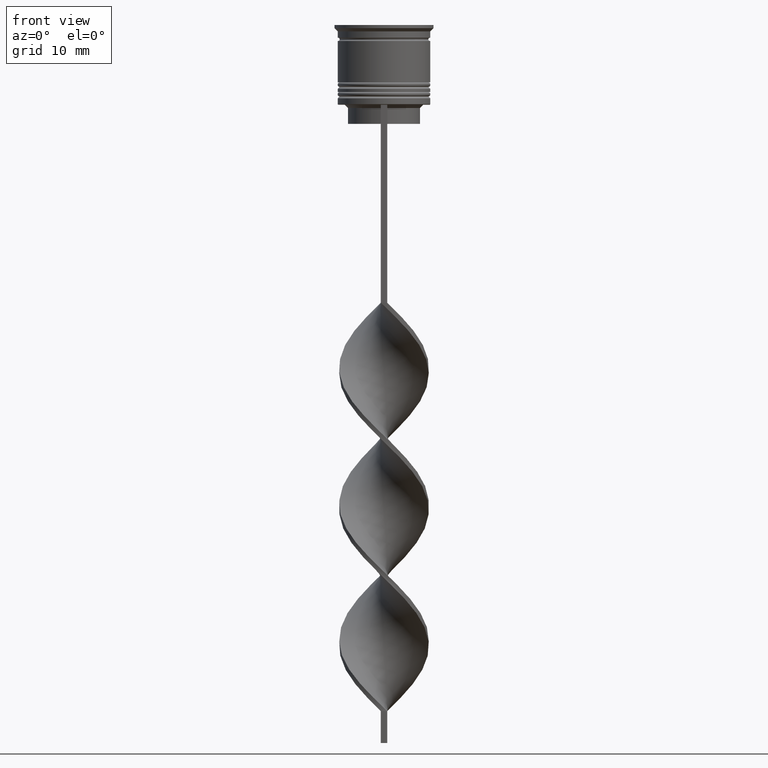
[diagram: clean part render]
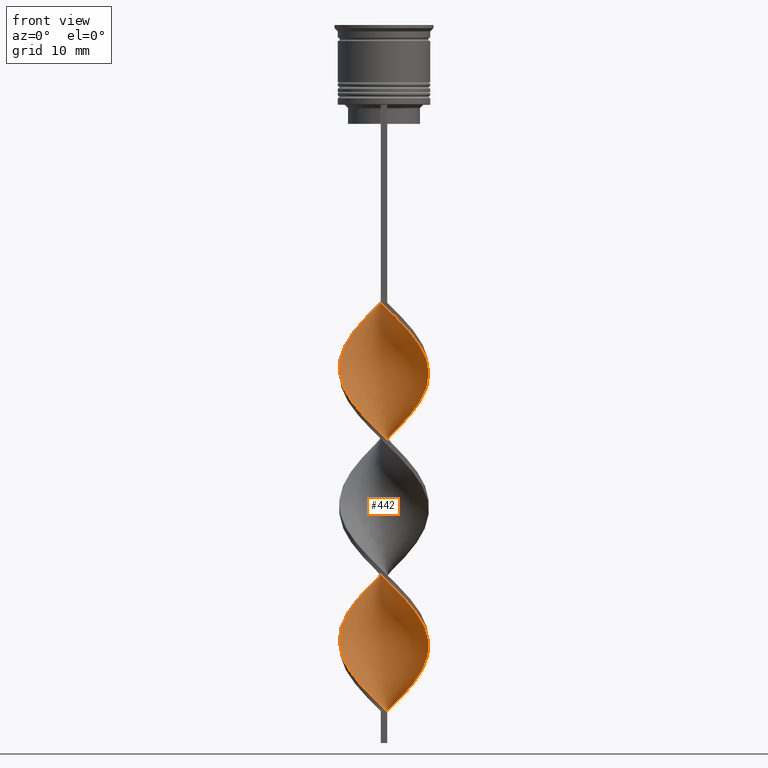
[diagram: same view with one face highlighted and labeled with its STEP entity id]
A machine part, front view. The second image highlights one B-rep face of the part: STEP entity #442.
In plain terms, the highlighted face is a freeform B-spline surface patch.
Its self-contained STEP definition (entity closure, byte-faithful):
#1 = CARTESIAN_POINT ( 'NONE',  ( 2.160680558725928790, -6.676934889838588738, -66.47435897435896379 ) ) ;
#3 = CARTESIAN_POINT ( 'NONE',  ( 5.016113981771116670, 4.908013908077306198, -102.5769230769230660 ) ) ;
#10 = CARTESIAN_POINT ( 'NONE',  ( -6.888693778558713454, 1.340111198836291706, -74.67948717948718240 ) ) ;
#11 = DIRECTION ( 'NONE',  ( 0.000000000000000000, 1.000000000000000000, 0.000000000000000000 ) ) ;
#20 = CARTESIAN_POINT ( 'NONE',  ( 6.888693778558720560, 1.340111198836283490, -76.32051282051281760 ) ) ;
#22 = CARTESIAN_POINT ( 'NONE',  ( -1.349953882555827489, -6.939289008388866975, -85.34615384615385381 ) ) ;
#26 = CARTESIAN_POINT ( 'NONE',  ( -2.160680558725931011, 6.676934889838587850, -45.14102564102563520 ) ) ;
#38 = CARTESIAN_POINT ( 'NONE',  ( 0.3499538825558234922, -7.060710991611127696, -86.98717948717948900 ) ) ;
#50 = CARTESIAN_POINT ( 'NONE',  ( 6.967048179568297250, 1.198476987909309344, -98.47435897435896379 ) ) ;
#55 = CARTESIAN_POINT ( 'NONE',  ( -6.967048179568302579, 1.198476987909311342, -52.52564102564103621 ) ) ;
#74 = CARTESIAN_POINT ( 'NONE',  ( -3.695790217132985944, 5.965830593550586869, -46.78205128205127750 ) ) ;
#79 = CARTESIAN_POINT ( 'NONE',  ( -1.189738741299881442, -6.916250554126144756, -63.19230769230768630 ) ) ;
#89 = CARTESIAN_POINT ( 'NONE',  ( -7.009230458814042386, 0.3474023247382359014, -96.01282051282051100 ) ) ;
#105 = CARTESIAN_POINT ( 'NONE',  ( 6.477784105070043985, -2.830975188000778964, -72.21794871794871540 ) ) ;
#129 = CARTESIAN_POINT ( 'NONE',  ( -2.160680558725931011, 6.676934889838587850, -87.80769230769230660 ) ) ;
#146 = CARTESIAN_POINT ( 'NONE',  ( -3.695790217132985944, 5.965830593550586869, -89.44871794871794179 ) ) ;
#158 = CARTESIAN_POINT ( 'NONE',  ( -6.477784105070046650, 2.830975188000775411, -50.88461538461537970 ) ) ;
#160 = CARTESIAN_POINT ( 'NONE',  ( -2.810334191479773036, 6.430553765594351212, -68.11538461538459899 ) ) ;
#162 = CARTESIAN_POINT ( 'NONE',  ( -5.016113981771117558, 4.908013908077312415, -91.08974358974359120 ) ) ;
#174 = CARTESIAN_POINT ( 'NONE',  ( -6.044919434621174759, 3.564961294171264949, -50.06410256410256210 ) ) ;
#177 = CARTESIAN_POINT ( 'NONE',  ( -7.051412738059777752, 0.5036723384328427588, -75.50000000000000000 ) ) ;
#179 = EDGE_CURVE ( 'NONE', #1910, #485, #1815, .T. ) ;
#185 = CARTESIAN_POINT ( 'NONE',  ( 6.967048179568296362, 1.198476987909309566, -55.80769230769230660 ) ) ;
#195 = CARTESIAN_POINT ( 'NONE',  ( -4.267603233600012480, 5.571136566318105388, -69.75641025641024839 ) ) ;
#211 = CARTESIAN_POINT ( 'NONE',  ( 2.810334191479773480, -6.430553765594351212, -46.78205128205127750 ) ) ;
#217 = CARTESIAN_POINT ( 'NONE',  ( 6.477784105070041321, 2.830975188000771858, -57.44871794871794890 ) ) ;
#249 = CARTESIAN_POINT ( 'NONE',  ( -1.189738741299881442, -6.916250554126144756, -105.8589743589743506 ) ) ;
#255 = CARTESIAN_POINT ( 'NONE',  ( -0.5000000000000000000, -6.999999999999997335, -43.50000000000000000 ) ) ;
#262 = CARTESIAN_POINT ( 'NONE',  ( -6.367811255276639493, -2.949742330640456434, -99.29487179487178139 ) ) ;
#268 = CARTESIAN_POINT ( 'NONE',  ( -6.477784105070042209, -2.830975188000768306, -78.78205128205127039 ) ) ;
#276 = CARTESIAN_POINT ( 'NONE',  ( -5.016113981771117558, 4.908013908077312415, -91.08974358974359120 ) ) ;
#278 = CARTESIAN_POINT ( 'NONE',  ( 1.189738741299877445, -6.916250554126140315, -87.80769230769230660 ) ) ;
#284 = CARTESIAN_POINT ( 'NONE',  ( 6.009647691495616506, -3.722934602041177321, -93.55128205128204399 ) ) ;
#299 = CARTESIAN_POINT ( 'NONE',  ( 0.5000000000000008882, 6.999999999999997335, -107.5000000000000000 ) ) ;
#303 = CARTESIAN_POINT ( 'NONE',  ( -1.349953882555827489, -6.939289008388866975, -85.34615384615383959 ) ) ;
#317 = CARTESIAN_POINT ( 'NONE',  ( -2.971407234896037863, 6.414580771288304284, -45.96153846153845279 ) ) ;
#334 = CARTESIAN_POINT ( 'NONE',  ( -4.944061684284419833, -5.052955718088660397, -59.08974358974359120 ) ) ;
#340 = CARTESIAN_POINT ( 'NONE',  ( -5.476854687890019058, -4.387945160064919747, -100.9358974358974308 ) ) ;
#354 = CARTESIAN_POINT ( 'NONE',  ( 6.725974819057658038, 2.176550059239733326, -77.14102564102563520 ) ) ;
#357 = CARTESIAN_POINT ( 'NONE',  ( 4.420173199369933137, -5.517080415812873007, -68.93589743589743080 ) ) ;
#382 = CARTESIAN_POINT ( 'NONE',  ( -1.349953882555824158, 6.939289008388872304, -86.98717948717948900 ) ) ;
#390 = CARTESIAN_POINT ( 'NONE',  ( 0.4999999999999996669, -2.333333333333336590, -107.5000000000000000 ) ) ;
#406 = CARTESIAN_POINT ( 'NONE',  ( -0.5000000000000000000, 7.000000000000002665, -86.16666666666667140 ) ) ;
#423 = CARTESIAN_POINT ( 'NONE',  ( 5.016113981771116670, -4.908013908077313303, -69.75641025641024839 ) ) ;
#439 = CARTESIAN_POINT ( 'NONE',  ( -6.888693778558713454, 1.340111198836291706, -74.67948717948718240 ) ) ;
#442 = ADVANCED_FACE ( 'NONE', ( #447 ), #2177, .T. ) ;
#447 = FACE_OUTER_BOUND ( 'NONE', #2141, .T. ) ;
#469 = CARTESIAN_POINT ( 'NONE',  ( -1.189738741299875224, 6.916250554126141203, -66.47435897435896379 ) ) ;
#477 = CARTESIAN_POINT ( 'NONE',  ( -7.009230458814042386, 0.3474023247382359014, -53.34615384615383959 ) ) ;
#480 = CARTESIAN_POINT ( 'NONE',  ( 1.189738741299877445, -6.916250554126140315, -45.14102564102563520 ) ) ;
#485 = VERTEX_POINT ( 'NONE', #1571 ) ;
#488 = CARTESIAN_POINT ( 'NONE',  ( 4.420173199369931361, 5.517080415812865901, -60.73076923076922640 ) ) ;
#498 = CARTESIAN_POINT ( 'NONE',  ( 5.016113981771116670, 4.908013908077306198, -59.91025641025640880 ) ) ;
#501 = CARTESIAN_POINT ( 'NONE',  ( 4.267603233600013368, -5.571136566318104499, -48.42307692307691269 ) ) ;
#513 = CARTESIAN_POINT ( 'NONE',  ( -6.725974819057657150, -2.176550059239735546, -98.47435897435896379 ) ) ;
#523 = CARTESIAN_POINT ( 'NONE',  ( 0.3499538825558234922, -7.060710991611127696, -44.32051282051282470 ) ) ;
#533 = CARTESIAN_POINT ( 'NONE',  ( -2.160680558725931011, 6.676934889838587850, -87.80769230769230660 ) ) ;
#539 = CARTESIAN_POINT ( 'NONE',  ( 2.810334191479773480, -6.430553765594351212, -89.44871794871794179 ) ) ;
#548 = CARTESIAN_POINT ( 'NONE',  ( -3.591144782915619338, -6.089317414547553042, -60.73076923076922640 ) ) ;
#552 = CARTESIAN_POINT ( 'NONE',  ( 1.349953882555826601, 6.939289008388866975, -106.6794871794871824 ) ) ;
#557 = CARTESIAN_POINT ( 'NONE',  ( -4.267603233600019585, -5.571136566318106276, -59.91025641025640880 ) ) ;
#567 = CARTESIAN_POINT ( 'NONE',  ( 5.476854687890014617, -4.387945160064918859, -92.73076923076922640 ) ) ;
#573 = CARTESIAN_POINT ( 'NONE',  ( -6.367811255276632387, 2.949742330640457766, -73.03846153846153300 ) ) ;
#584 = CARTESIAN_POINT ( 'NONE',  ( 4.267603233600013368, -5.571136566318104499, -91.08974358974359120 ) ) ;
#589 = CARTESIAN_POINT ( 'NONE',  ( -3.695790217132987721, -5.965830593550580652, -82.88461538461537259 ) ) ;
#602 = CARTESIAN_POINT ( 'NONE',  ( 6.725974819057650933, -2.176550059239735546, -95.19230769230769340 ) ) ;
#607 = CARTESIAN_POINT ( 'NONE',  ( 6.722416142319174170, -2.014726087955045042, -73.03846153846153300 ) ) ;
#619 = CARTESIAN_POINT ( 'NONE',  ( -6.009647691495620947, -3.722934602041179097, -100.1153846153846274 ) ) ;
#624 = CARTESIAN_POINT ( 'NONE',  ( -6.722416142319174170, 2.014726087955044598, -94.37179487179486159 ) ) ;
#640 = CARTESIAN_POINT ( 'NONE',  ( -6.367811255276639493, -2.949742330640456434, -99.29487179487178139 ) ) ;
#655 = CARTESIAN_POINT ( 'NONE',  ( -5.612054764172303756, 4.298947400341753600, -91.91025641025643722 ) ) ;
#669 = CARTESIAN_POINT ( 'NONE',  ( 1.189738741299885438, 6.916250554126144756, -84.52564102564103621 ) ) ;
#685 = CARTESIAN_POINT ( 'NONE',  ( -1.349953882555824158, 6.939289008388872304, -44.32051282051282470 ) ) ;
#689 = CARTESIAN_POINT ( 'NONE',  ( 0.5000000000000008882, 6.999999999999997335, -64.83333333333332860 ) ) ;
#693 = CARTESIAN_POINT ( 'NONE',  ( 5.612054764172302868, -4.298947400341755376, -70.57692307692306599 ) ) ;
#712 = CARTESIAN_POINT ( 'NONE',  ( 6.725974819057650933, -2.176550059239735102, -52.52564102564102910 ) ) ;
#726 = CARTESIAN_POINT ( 'NONE',  ( -6.967048179568298139, -1.198476987909306679, -77.14102564102563520 ) ) ;
#730 = CARTESIAN_POINT ( 'NONE',  ( 2.971407234896038307, 6.414580771288298067, -62.37179487179486870 ) ) ;
#741 = CARTESIAN_POINT ( 'NONE',  ( -2.971407234896037863, 6.414580771288304284, -45.96153846153845990 ) ) ;
#745 = CARTESIAN_POINT ( 'NONE',  ( 2.029523600043931175, -6.771790116641153823, -45.96153846153845990 ) ) ;
#752 = CARTESIAN_POINT ( 'NONE',  ( -6.009647691495614730, 3.722934602041180430, -72.21794871794871540 ) ) ;
#768 = CARTESIAN_POINT ( 'NONE',  ( 6.888693778558713454, -1.340111198836289264, -53.34615384615383959 ) ) ;
#777 = CARTESIAN_POINT ( 'NONE',  ( -6.967048179568302579, 1.198476987909311120, -95.19230769230769340 ) ) ;
#779 = CARTESIAN_POINT ( 'NONE',  ( 4.944061684284414504, -5.052955718088659509, -91.91025641025643722 ) ) ;
#793 = CARTESIAN_POINT ( 'NONE',  ( 3.591144782915620226, 6.089317414547553042, -82.06410256410255499 ) ) ;
#810 = CARTESIAN_POINT ( 'NONE',  ( 5.476854687890019946, 4.387945160064918859, -79.60256410256410220 ) ) ;
#813 = CARTESIAN_POINT ( 'NONE',  ( -6.722416142319169730, -2.014726087955041045, -77.96153846153845279 ) ) ;
#818 = CARTESIAN_POINT ( 'NONE',  ( 7.051412738059776864, -0.5036723384328418707, -96.83333333333332860 ) ) ;
#825 = CARTESIAN_POINT ( 'NONE',  ( -6.477784105070046650, 2.830975188000775411, -93.55128205128204399 ) ) ;
#831 = CARTESIAN_POINT ( 'NONE',  ( 6.888693778558713454, -1.340111198836289264, -96.01282051282051100 ) ) ;
#839 = CARTESIAN_POINT ( 'NONE',  ( 3.591144782915614453, -6.089317414547549490, -90.26923076923077360 ) ) ;
#844 = CARTESIAN_POINT ( 'NONE',  ( 6.722416142319168841, 2.014726087955040157, -99.29487179487178139 ) ) ;
#862 = CARTESIAN_POINT ( 'NONE',  ( 5.476854687890014617, -4.387945160064918859, -92.73076923076922640 ) ) ;
#873 = CARTESIAN_POINT ( 'NONE',  ( -7.051412738059776864, 0.5036723384328427588, -75.49999999999998579 ) ) ;
#880 = CARTESIAN_POINT ( 'NONE',  ( -3.695790217132985944, 5.965830593550586869, -89.44871794871794179 ) ) ;
#896 = CARTESIAN_POINT ( 'NONE',  ( -2.029523600043935616, -6.771790116641158264, -105.0384615384615330 ) ) ;
#919 = CARTESIAN_POINT ( 'NONE',  ( -3.591144782915619338, -6.089317414547552154, -103.3974358974358694 ) ) ;
#935 = CARTESIAN_POINT ( 'NONE',  ( 0.3499538825558280997, 7.060710991611133025, -85.34615384615383959 ) ) ;
#952 = CARTESIAN_POINT ( 'NONE',  ( 4.420173199369933137, -5.517080415812872118, -68.93589743589743080 ) ) ;
#973 = CARTESIAN_POINT ( 'NONE',  ( -5.476854687890014617, 4.387945160064918859, -71.39743589743588359 ) ) ;
#990 = CARTESIAN_POINT ( 'NONE',  ( -5.612054764172303756, 4.298947400341753600, -49.24358974358974450 ) ) ;
#992 = CARTESIAN_POINT ( 'NONE',  ( 6.967048179568297250, 1.198476987909309344, -55.80769230769230660 ) ) ;
#998 = CARTESIAN_POINT ( 'NONE',  ( 5.016113981771116670, 4.908013908077306198, -59.91025641025640880 ) ) ;
#1008 = CARTESIAN_POINT ( 'NONE',  ( 3.591144782915614453, -6.089317414547549490, -47.60256410256409509 ) ) ;
#1015 = CARTESIAN_POINT ( 'NONE',  ( -4.267603233600012480, 5.571136566318105388, -69.75641025641024839 ) ) ;
#1016 = LINE ( 'NONE', #2376, #3202 ) ;
#1029 = CARTESIAN_POINT ( 'NONE',  ( 6.722416142319168841, 2.014726087955040157, -56.62820512820513130 ) ) ;
#1046 = CARTESIAN_POINT ( 'NONE',  ( -6.009647691495620947, -3.722934602041179097, -57.44871794871794890 ) ) ;
#1049 = CARTESIAN_POINT ( 'NONE',  ( 1.349953882555826601, 6.939289008388866975, -64.01282051282051100 ) ) ;
#1061 = CARTESIAN_POINT ( 'NONE',  ( -2.029523600043935616, -6.771790116641158264, -105.0384615384615188 ) ) ;
#1063 = CARTESIAN_POINT ( 'NONE',  ( 6.477784105070041321, 2.830975188000771858, -100.1153846153846132 ) ) ;
#1078 = CARTESIAN_POINT ( 'NONE',  ( -4.944061684284419833, -5.052955718088660397, -59.08974358974358410 ) ) ;
#1088 = CARTESIAN_POINT ( 'NONE',  ( 2.971407234896038307, 6.414580771288298067, -105.0384615384615330 ) ) ;
#1097 = CARTESIAN_POINT ( 'NONE',  ( -2.810334191479776589, -6.430553765594355653, -61.55128205128204399 ) ) ;
#1099 = CARTESIAN_POINT ( 'NONE',  ( 5.612054764172301979, 4.298947400341747382, -101.7564102564102484 ) ) ;
#1103 = CARTESIAN_POINT ( 'NONE',  ( -7.051412738059782193, -0.5036723384328409825, -54.16666666666665719 ) ) ;
#1115 = CARTESIAN_POINT ( 'NONE',  ( -5.612054764172303756, -4.298947400341743830, -80.42307692307691980 ) ) ;
#1118 = CARTESIAN_POINT ( 'NONE',  ( -2.971407234896039196, -6.414580771288298067, -83.70512820512820440 ) ) ;
#1128 = CARTESIAN_POINT ( 'NONE',  ( -0.5000000000000000000, -6.999999999999997335, -86.16666666666667140 ) ) ;
#1134 = CARTESIAN_POINT ( 'NONE',  ( -6.044919434621172094, -3.564961294171259620, -79.60256410256410220 ) ) ;
#1152 = CARTESIAN_POINT ( 'NONE',  ( -4.420173199369934025, 5.517080415812871230, -47.60256410256408799 ) ) ;
#1154 = CARTESIAN_POINT ( 'NONE',  ( -5.612054764172303756, 4.298947400341753600, -91.91025641025643722 ) ) ;
#1166 = CARTESIAN_POINT ( 'NONE',  ( -6.725974819057657150, -2.176550059239735990, -98.47435897435896379 ) ) ;
#1185 = ORIENTED_EDGE ( 'NONE', *, *, #1766, .F. ) ;
#1187 = CARTESIAN_POINT ( 'NONE',  ( 6.967048179568301691, -1.198476987909310898, -73.85897435897436480 ) ) ;
#1207 = CARTESIAN_POINT ( 'NONE',  ( 0.4999999999999991673, -7.000000000000002665, -107.5000000000000000 ) ) ;
#1226 = CARTESIAN_POINT ( 'NONE',  ( 4.944061684284423386, 5.052955718088656845, -80.42307692307691980 ) ) ;
#1233 = ORIENTED_EDGE ( 'NONE', *, *, #179, .T. ) ;
#1243 = CARTESIAN_POINT ( 'NONE',  ( 6.477784105070041321, 2.830975188000771858, -57.44871794871794890 ) ) ;
#1246 = CARTESIAN_POINT ( 'NONE',  ( -6.477784105070046650, 2.830975188000774967, -93.55128205128204399 ) ) ;
#1261 = CARTESIAN_POINT ( 'NONE',  ( -6.967048179568302579, 1.198476987909311120, -52.52564102564102910 ) ) ;
#1271 = CARTESIAN_POINT ( 'NONE',  ( 6.722416142319168841, 2.014726087955040157, -56.62820512820513130 ) ) ;
#1280 = EDGE_CURVE ( 'NONE', #3120, #485, #1546, .T. ) ;
#1299 = CARTESIAN_POINT ( 'NONE',  ( -0.5000000000000000000, 7.000000000000002665, -43.50000000000000000 ) ) ;
#1319 = CARTESIAN_POINT ( 'NONE',  ( 3.695790217132984168, 5.965830593550582428, -61.55128205128204399 ) ) ;
#1333 = CARTESIAN_POINT ( 'NONE',  ( -0.3499538825558272115, -7.060710991611133025, -106.6794871794871824 ) ) ;
#1343 = CARTESIAN_POINT ( 'NONE',  ( 4.944061684284414504, -5.052955718088659509, -49.24358974358973740 ) ) ;
#1351 = CARTESIAN_POINT ( 'NONE',  ( -2.029523600043935616, -6.771790116641158264, -62.37179487179486870 ) ) ;
#1358 = CARTESIAN_POINT ( 'NONE',  ( 5.612054764172301979, 4.298947400341747382, -101.7564102564102484 ) ) ;
#1367 = CARTESIAN_POINT ( 'NONE',  ( 1.189738741299885438, 6.916250554126144756, -84.52564102564103621 ) ) ;
#1370 = CARTESIAN_POINT ( 'NONE',  ( 6.725974819057650933, -2.176550059239735102, -95.19230769230769340 ) ) ;
#1378 = CARTESIAN_POINT ( 'NONE',  ( -6.009647691495620947, -3.722934602041179097, -57.44871794871794890 ) ) ;
#1393 = CARTESIAN_POINT ( 'NONE',  ( 6.967048179568296362, 1.198476987909309566, -98.47435897435896379 ) ) ;
#1404 = CARTESIAN_POINT ( 'NONE',  ( -5.016113981771117558, 4.908013908077312415, -48.42307692307691269 ) ) ;
#1421 = CARTESIAN_POINT ( 'NONE',  ( 6.367811255276632387, -2.949742330640456878, -94.37179487179486159 ) ) ;
#1426 = CARTESIAN_POINT ( 'NONE',  ( -4.267603233600019585, -5.571136566318106276, -102.5769230769230660 ) ) ;
#1438 = CARTESIAN_POINT ( 'NONE',  ( 2.160680558725928790, -6.676934889838588738, -66.47435897435896379 ) ) ;
#1475 = CARTESIAN_POINT ( 'NONE',  ( -4.420173199369934025, 5.517080415812871230, -90.26923076923075939 ) ) ;
#1499 = CARTESIAN_POINT ( 'NONE',  ( 6.044919434621174759, -3.564961294171264949, -71.39743589743588359 ) ) ;
#1513 = CARTESIAN_POINT ( 'NONE',  ( -0.3499538825558217714, 7.060710991611127696, -65.65384615384614619 ) ) ;
#1517 = CARTESIAN_POINT ( 'NONE',  ( -6.044919434621174759, 3.564961294171264949, -92.73076923076922640 ) ) ;
#1529 = CARTESIAN_POINT ( 'NONE',  ( -3.695790217132985944, 5.965830593550586869, -46.78205128205127750 ) ) ;
#1531 = CARTESIAN_POINT ( 'NONE',  ( 0.3499538825558234922, -7.060710991611127696, -44.32051282051282470 ) ) ;
#1544 = CARTESIAN_POINT ( 'NONE',  ( 0.5000000000000008882, 6.999999999999997335, -107.5000000000000000 ) ) ;
#1546 = B_SPLINE_CURVE_WITH_KNOTS ( 'NONE', 3,
 ( #2898, #2842, #390, #3167 ),
 .UNSPECIFIED., .F., .F.,
 ( 4, 4 ),
 ( 0.000000000000000000, 1.000000000000000000 ),
 .UNSPECIFIED. ) ;
#1553 = CARTESIAN_POINT ( 'NONE',  ( 6.044919434621172094, 3.564961294171260509, -58.26923076923076650 ) ) ;
#1558 = CARTESIAN_POINT ( 'NONE',  ( -2.029523600043928955, 6.771790116641154711, -67.29487179487178139 ) ) ;
#1571 = CARTESIAN_POINT ( 'NONE',  ( 0.4999999999999991673, -7.000000000000002665, -107.5000000000000000 ) ) ;
#1575 = CARTESIAN_POINT ( 'NONE',  ( 1.189738741299877445, -6.916250554126140315, -45.14102564102563520 ) ) ;
#1604 = CARTESIAN_POINT ( 'NONE',  ( -3.591144782915619338, -6.089317414547553042, -103.3974358974358836 ) ) ;
#1608 = CARTESIAN_POINT ( 'NONE',  ( -4.420173199369932249, -5.517080415812866789, -82.06410256410255499 ) ) ;
#1621 = CARTESIAN_POINT ( 'NONE',  ( 6.367811255276638605, 2.949742330640457322, -77.96153846153845279 ) ) ;
#1627 = CARTESIAN_POINT ( 'NONE',  ( -5.016113981771117558, -4.908013908077305310, -81.24358974358973740 ) ) ;
#1635 = CARTESIAN_POINT ( 'NONE',  ( 2.810334191479780586, 6.430553765594353877, -82.88461538461537259 ) ) ;
#1644 = CARTESIAN_POINT ( 'NONE',  ( 1.189738741299877445, -6.916250554126140315, -87.80769230769230660 ) ) ;
#1656 = CARTESIAN_POINT ( 'NONE',  ( 4.420173199369931361, 5.517080415812866789, -103.3974358974358836 ) ) ;
#1663 = CARTESIAN_POINT ( 'NONE',  ( -7.009230458814037057, -0.3474023247382289625, -76.32051282051281760 ) ) ;
#1674 = CARTESIAN_POINT ( 'NONE',  ( 7.009230458814037057, 0.3474023247382328483, -97.65384615384614619 ) ) ;
#1677 = CARTESIAN_POINT ( 'NONE',  ( 4.420173199369931361, 5.517080415812865901, -103.3974358974358694 ) ) ;
#1688 = CARTESIAN_POINT ( 'NONE',  ( 0.5000000000000008882, 6.999999999999997335, -107.5000000000000000 ) ) ;
#1693 = CARTESIAN_POINT ( 'NONE',  ( -7.009230458814042386, 0.3474023247382359014, -96.01282051282051100 ) ) ;
#1708 = CARTESIAN_POINT ( 'NONE',  ( -5.476854687890019058, -4.387945160064919747, -100.9358974358974308 ) ) ;
#1714 = CARTESIAN_POINT ( 'NONE',  ( 6.009647691495623612, 3.722934602041175989, -78.78205128205127039 ) ) ;
#1729 = CARTESIAN_POINT ( 'NONE',  ( -0.3499538825558272115, -7.060710991611133025, -106.6794871794871682 ) ) ;
#1746 = CARTESIAN_POINT ( 'NONE',  ( -3.591144782915619338, -6.089317414547552154, -60.73076923076922640 ) ) ;
#1765 = CARTESIAN_POINT ( 'NONE',  ( -2.971407234896037863, 6.414580771288304284, -88.62820512820513841 ) ) ;
#1766 = EDGE_CURVE ( 'NONE', #2937, #3120, #2660, .T. ) ;
#1785 = CARTESIAN_POINT ( 'NONE',  ( 5.476854687890014617, -4.387945160064918859, -50.06410256410256210 ) ) ;
#1787 = CARTESIAN_POINT ( 'NONE',  ( 6.367811255276638605, 2.949742330640457322, -77.96153846153845279 ) ) ;
#1798 = CARTESIAN_POINT ( 'NONE',  ( -4.420173199369934025, 5.517080415812872118, -47.60256410256409509 ) ) ;
#1815 =( BOUNDED_CURVE ( )  B_SPLINE_CURVE ( 2, ( #1299, #685, #2602, #741, #1529, #1798, #3188, #990, #174, #158, #2330, #1261, #477, #3410, #2662, #2063, #2355, #1046, #2994, #1078, #1907, #548, #1097, #1351, #79, #3325, #3489, #2188, #1, #2809, #2953, #357, #2168, #3257, #2251, #3222, #607, #2407, #2135, #1890, #20, #2457, #1621, #1714, #810, #1921, #3271, #793, #1635, #2523, #1367, #2730, #2975, #1977, #533, #3504, #880, #3007, #276, #1154, #3068, #825, #624, #777, #1693, #2715, #1872, #513, #262, #2788, #340, #2440, #1426, #1604, #2701, #1061, #249, #1333, #2424 ),
 .UNSPECIFIED., .F., .T. ) 
 B_SPLINE_CURVE_WITH_KNOTS ( ( 3, 2, 2, 2, 2, 2, 2, 2, 2, 2, 2, 2, 2, 2, 2, 2, 2, 2, 2, 2, 2, 2, 2, 2, 2, 2, 2, 2, 2, 2, 2, 2, 2, 2, 2, 2, 2, 2, 2, 3 ),
 ( 0.000000000000000000, 0.01923076923076923184, 0.03846153846153846367, 0.05769230769230768857, 0.07692307692307692735, 0.09615384615384615918, 0.1153846153846153771, 0.1346153846153846090, 0.1538461538461538547, 0.1730769230769230449, 0.1923076923076923184, 0.2115384615384615363, 0.2307692307692307543, 0.2500000000000000000, 0.2692307692307692180, 0.2884615384615384359, 0.3076923076923077094, 0.3269230769230769273, 0.3461538461538460898, 0.3653846153846153633, 0.3846153846153846367, 0.4038461538461539102, 0.4230769230769230727, 0.4423076923076922906, 0.4615384615384615086, 0.4807692307692307820, 0.5000000000000000000, 0.5192307692307692735, 0.5384615384615384359, 0.5576923076923077094, 0.5769230769230768718, 0.5961538461538461453, 0.6153846153846154188, 0.6346153846153845812, 0.6538461538461538547, 0.6730769230769230171, 0.6923076923076921796, 0.7115384615384615641, 0.7307692307692307265, 0.7500000000000000000 ),
 .UNSPECIFIED. ) 
 CURVE ( )  GEOMETRIC_REPRESENTATION_ITEM ( )  RATIONAL_B_SPLINE_CURVE ( ( 1.000000000000000000, 0.9927088740980539727, 1.000000000000000000, 0.9927088740980539727, 1.000000000000000000, 0.9927088740980539727, 1.000000000000000000, 0.9927088740980539727, 1.000000000000000000, 0.9927088740980539727, 1.000000000000000000, 0.9927088740980539727, 1.000000000000000000, 0.9927088740980539727, 1.000000000000000000, 0.9927088740980539727, 1.000000000000000000, 0.9927088740980539727, 1.000000000000000000, 0.9927088740980539727, 1.000000000000000000, 0.9927088740980539727, 1.000000000000000000, 0.9927088740980539727, 1.000000000000000000, 0.9927088740980539727, 1.000000000000000000, 0.9927088740980539727, 1.000000000000000000, 0.9927088740980539727, 1.000000000000000000, 0.9927088740980539727, 1.000000000000000000, 0.9927088740980539727, 1.000000000000000000, 0.9927088740980539727, 1.000000000000000000, 0.9927088740980539727, 1.000000000000000000, 0.9927088740980539727, 1.000000000000000000, 0.9927088740980539727, 1.000000000000000000, 0.9927088740980539727, 1.000000000000000000, 0.9927088740980539727, 1.000000000000000000, 0.9927088740980539727, 1.000000000000000000, 0.9927088740980539727, 1.000000000000000000, 0.9927088740980539727, 1.000000000000000000, 0.9927088740980539727, 1.000000000000000000, 0.9927088740980539727, 1.000000000000000000, 0.9927088740980539727, 1.000000000000000000, 0.9927088740980539727, 1.000000000000000000, 0.9927088740980539727, 1.000000000000000000, 0.9927088740980539727, 1.000000000000000000, 0.9927088740980539727, 1.000000000000000000, 0.9927088740980539727, 1.000000000000000000, 0.9927088740980539727, 1.000000000000000000, 0.9927088740980539727, 1.000000000000000000, 0.9927088740980539727, 1.000000000000000000, 0.9927088740980539727, 1.000000000000000000, 0.9927088740980539727, 1.000000000000000000 ) ) 
 REPRESENTATION_ITEM ( '' )  );
#1828 = CARTESIAN_POINT ( 'NONE',  ( 1.349953882555826601, 6.939289008388866975, -64.01282051282051100 ) ) ;
#1843 = CARTESIAN_POINT ( 'NONE',  ( 6.009647691495615618, -3.722934602041177765, -50.88461538461537970 ) ) ;
#1862 = CARTESIAN_POINT ( 'NONE',  ( 7.051412738059776864, -0.5036723384328418707, -54.16666666666665719 ) ) ;
#1872 = CARTESIAN_POINT ( 'NONE',  ( -6.888693778558718783, -1.340111198836287487, -97.65384615384614619 ) ) ;
#1875 = CARTESIAN_POINT ( 'NONE',  ( 2.160680558725932343, 6.676934889838581633, -105.8589743589743506 ) ) ;
#1879 = CARTESIAN_POINT ( 'NONE',  ( 2.810334191479773480, -6.430553765594351212, -46.78205128205127750 ) ) ;
#1890 = CARTESIAN_POINT ( 'NONE',  ( 7.051412738059782193, 0.5036723384328402053, -75.50000000000000000 ) ) ;
#1898 = CARTESIAN_POINT ( 'NONE',  ( 7.009230458814037057, 0.3474023247382328483, -54.98717948717948190 ) ) ;
#1907 = CARTESIAN_POINT ( 'NONE',  ( -4.267603233600019585, -5.571136566318106276, -59.91025641025640880 ) ) ;
#1910 = VERTEX_POINT ( 'NONE', #3114 ) ;
#1913 = CARTESIAN_POINT ( 'NONE',  ( -6.725974819057657150, -2.176550059239735990, -55.80769230769230660 ) ) ;
#1921 = CARTESIAN_POINT ( 'NONE',  ( 4.944061684284423386, 5.052955718088656845, -80.42307692307691980 ) ) ;
#1924 = CARTESIAN_POINT ( 'NONE',  ( 0.3499538825558234922, -7.060710991611127696, -86.98717948717948900 ) ) ;
#1927 = CARTESIAN_POINT ( 'NONE',  ( 7.009230458814037057, 0.3474023247382328483, -97.65384615384614619 ) ) ;
#1938 = CARTESIAN_POINT ( 'NONE',  ( 7.051412738059777752, -0.5036723384328418707, -96.83333333333332860 ) ) ;
#1945 = CARTESIAN_POINT ( 'NONE',  ( -0.5000000000000000000, 7.000000000000002665, -43.50000000000000000 ) ) ;
#1958 = CARTESIAN_POINT ( 'NONE',  ( -7.009230458814042386, 0.3474023247382359014, -53.34615384615383959 ) ) ;
#1972 = CARTESIAN_POINT ( 'NONE',  ( -6.722416142319174170, 2.014726087955044598, -94.37179487179486159 ) ) ;
#1977 = CARTESIAN_POINT ( 'NONE',  ( -1.349953882555824158, 6.939289008388872304, -86.98717948717948900 ) ) ;
#1994 = CARTESIAN_POINT ( 'NONE',  ( -1.189738741299881442, -6.916250554126144756, -105.8589743589743506 ) ) ;
#2013 = CARTESIAN_POINT ( 'NONE',  ( -6.967048179568302579, 1.198476987909311342, -95.19230769230769340 ) ) ;
#2030 = CARTESIAN_POINT ( 'NONE',  ( 1.349953882555822382, -6.939289008388872304, -65.65384615384614619 ) ) ;
#2048 = CARTESIAN_POINT ( 'NONE',  ( 2.971407234896034755, -6.414580771288305172, -67.29487179487178139 ) ) ;
#2063 = CARTESIAN_POINT ( 'NONE',  ( -6.725974819057657150, -2.176550059239735546, -55.80769230769230660 ) ) ;
#2065 = CARTESIAN_POINT ( 'NONE',  ( -6.009647691495613842, 3.722934602041180430, -72.21794871794871540 ) ) ;
#2066 = ORIENTED_EDGE ( 'NONE', *, *, #3378, .T. ) ;
#2083 = CARTESIAN_POINT ( 'NONE',  ( -7.009230458814037057, -0.3474023247382289625, -76.32051282051281760 ) ) ;
#2086 = CARTESIAN_POINT ( 'NONE',  ( 3.695790217132984168, 5.965830593550582428, -61.55128205128204399 ) ) ;
#2102 = CARTESIAN_POINT ( 'NONE',  ( -4.944061684284411839, 5.052955718088659509, -70.57692307692306599 ) ) ;
#2121 = CARTESIAN_POINT ( 'NONE',  ( 5.612054764172301979, 4.298947400341747382, -59.08974358974358410 ) ) ;
#2135 = CARTESIAN_POINT ( 'NONE',  ( 7.009230458814042386, -0.3474023247382383994, -74.67948717948718240 ) ) ;
#2141 = EDGE_LOOP ( 'NONE', ( #2066, #1233, #2399, #1185 ) ) ;
#2168 = CARTESIAN_POINT ( 'NONE',  ( 5.016113981771116670, -4.908013908077313303, -69.75641025641024839 ) ) ;
#2172 = CARTESIAN_POINT ( 'NONE',  ( 2.810334191479773480, -6.430553765594351212, -89.44871794871794179 ) ) ;
#2177 =( BOUNDED_SURFACE ( )  B_SPLINE_SURFACE ( 1, 2, ( 
 ( #255, #523, #1575, #3229, #1879, #3246, #501, #1343, #2433, #2946, #3513, #2393, #768, #1862, #1898, #185, #1271, #217, #2362, #3439, #998, #488, #2086, #730, #3179, #1828, #2652, #2916, #469, #1558, #2375, #3457, #1015, #2102, #3197, #752, #573, #3321, #10, #873, #1663, #2755, #2785, #268, #1134, #2985, #1627, #2466, #589, #1118, #2211, #303, #3263, #38, #1644, #2230, #539, #3293, #3277, #2770, #862, #284, #1421, #602, #831, #818, #1927, #1393, #844, #2480, #3015, #1358, #2722, #1677, #2446, #1088, #3308, #2737, #1688 ),
 ( #1945, #3037, #26, #317, #74, #1152, #1404, #2197, #2179, #2518, #2496, #55, #1958, #1103, #3050, #1913, #2248, #1378, #3000, #334, #557, #1746, #3144, #3377, #2532, #3086, #2319, #2030, #1438, #2048, #2337, #952, #423, #693, #1499, #105, #2838, #1187, #2282, #2856, #3416, #354, #1787, #2877, #3104, #1226, #2588, #2606, #3122, #3394, #669, #935, #406, #382, #129, #1765, #146, #1475, #162, #655, #1517, #1246, #1972, #2013, #89, #2262, #3064, #1166, #640, #619, #1708, #2568, #2804, #919, #3338, #896, #1994, #1729, #1207 ) ),
 .UNSPECIFIED., .F., .F., .F. ) 
 B_SPLINE_SURFACE_WITH_KNOTS ( ( 2, 2 ),
 ( 3, 2, 2, 2, 2, 2, 2, 2, 2, 2, 2, 2, 2, 2, 2, 2, 2, 2, 2, 2, 2, 2, 2, 2, 2, 2, 2, 2, 2, 2, 2, 2, 2, 2, 2, 2, 2, 2, 2, 3 ),
 ( 0.000000000000000000, 1.000000000000000000 ),
 ( 0.000000000000000000, 0.01923076923076923184, 0.03846153846153846367, 0.05769230769230769551, 0.07692307692307692735, 0.09615384615384615918, 0.1153846153846153910, 0.1346153846153846090, 0.1538461538461538547, 0.1730769230769230727, 0.1923076923076923184, 0.2115384615384615363, 0.2307692307692307820, 0.2500000000000000000, 0.2692307692307692180, 0.2884615384615384359, 0.3076923076923077094, 0.3269230769230769273, 0.3461538461538461453, 0.3653846153846153633, 0.3846153846153846367, 0.4038461538461538547, 0.4230769230769230727, 0.4423076923076922906, 0.4615384615384615641, 0.4807692307692307820, 0.5000000000000000000, 0.5192307692307692735, 0.5384615384615384359, 0.5576923076923077094, 0.5769230769230768718, 0.5961538461538461453, 0.6153846153846154188, 0.6346153846153845812, 0.6538461538461538547, 0.6730769230769231282, 0.6923076923076922906, 0.7115384615384615641, 0.7307692307692307265, 0.7500000000000000000 ),
 .UNSPECIFIED. ) 
 GEOMETRIC_REPRESENTATION_ITEM ( )  RATIONAL_B_SPLINE_SURFACE ( (
 ( 1.000000000000000000, 0.9927088740980539727, 1.000000000000000000, 0.9927088740980539727, 1.000000000000000000, 0.9927088740980539727, 1.000000000000000000, 0.9927088740980539727, 1.000000000000000000, 0.9927088740980539727, 1.000000000000000000, 0.9927088740980539727, 1.000000000000000000, 0.9927088740980539727, 1.000000000000000000, 0.9927088740980539727, 1.000000000000000000, 0.9927088740980539727, 1.000000000000000000, 0.9927088740980539727, 1.000000000000000000, 0.9927088740980539727, 1.000000000000000000, 0.9927088740980539727, 1.000000000000000000, 0.9927088740980539727, 1.000000000000000000, 0.9927088740980539727, 1.000000000000000000, 0.9927088740980539727, 1.000000000000000000, 0.9927088740980539727, 1.000000000000000000, 0.9927088740980539727, 1.000000000000000000, 0.9927088740980539727, 1.000000000000000000, 0.9927088740980539727, 1.000000000000000000, 0.9927088740980539727, 1.000000000000000000, 0.9927088740980539727, 1.000000000000000000, 0.9927088740980539727, 1.000000000000000000, 0.9927088740980539727, 1.000000000000000000, 0.9927088740980539727, 1.000000000000000000, 0.9927088740980539727, 1.000000000000000000, 0.9927088740980539727, 1.000000000000000000, 0.9927088740980539727, 1.000000000000000000, 0.9927088740980539727, 1.000000000000000000, 0.9927088740980539727, 1.000000000000000000, 0.9927088740980539727, 1.000000000000000000, 0.9927088740980539727, 1.000000000000000000, 0.9927088740980539727, 1.000000000000000000, 0.9927088740980539727, 1.000000000000000000, 0.9927088740980539727, 1.000000000000000000, 0.9927088740980539727, 1.000000000000000000, 0.9927088740980539727, 1.000000000000000000, 0.9927088740980539727, 1.000000000000000000, 0.9927088740980539727, 1.000000000000000000, 0.9927088740980539727, 1.000000000000000000),
 ( 1.000000000000000000, 0.9927088740980539727, 1.000000000000000000, 0.9927088740980539727, 1.000000000000000000, 0.9927088740980539727, 1.000000000000000000, 0.9927088740980539727, 1.000000000000000000, 0.9927088740980539727, 1.000000000000000000, 0.9927088740980539727, 1.000000000000000000, 0.9927088740980539727, 1.000000000000000000, 0.9927088740980539727, 1.000000000000000000, 0.9927088740980539727, 1.000000000000000000, 0.9927088740980539727, 1.000000000000000000, 0.9927088740980539727, 1.000000000000000000, 0.9927088740980539727, 1.000000000000000000, 0.9927088740980539727, 1.000000000000000000, 0.9927088740980539727, 1.000000000000000000, 0.9927088740980539727, 1.000000000000000000, 0.9927088740980539727, 1.000000000000000000, 0.9927088740980539727, 1.000000000000000000, 0.9927088740980539727, 1.000000000000000000, 0.9927088740980539727, 1.000000000000000000, 0.9927088740980539727, 1.000000000000000000, 0.9927088740980539727, 1.000000000000000000, 0.9927088740980539727, 1.000000000000000000, 0.9927088740980539727, 1.000000000000000000, 0.9927088740980539727, 1.000000000000000000, 0.9927088740980539727, 1.000000000000000000, 0.9927088740980539727, 1.000000000000000000, 0.9927088740980539727, 1.000000000000000000, 0.9927088740980539727, 1.000000000000000000, 0.9927088740980539727, 1.000000000000000000, 0.9927088740980539727, 1.000000000000000000, 0.9927088740980539727, 1.000000000000000000, 0.9927088740980539727, 1.000000000000000000, 0.9927088740980539727, 1.000000000000000000, 0.9927088740980539727, 1.000000000000000000, 0.9927088740980539727, 1.000000000000000000, 0.9927088740980539727, 1.000000000000000000, 0.9927088740980539727, 1.000000000000000000, 0.9927088740980539727, 1.000000000000000000, 0.9927088740980539727, 1.000000000000000000) ) ) 
 REPRESENTATION_ITEM ( '' )  SURFACE ( )  );
#2179 = CARTESIAN_POINT ( 'NONE',  ( -6.044919434621174759, 3.564961294171264949, -50.06410256410256210 ) ) ;
#2188 = CARTESIAN_POINT ( 'NONE',  ( 1.349953882555822382, -6.939289008388872304, -65.65384615384614619 ) ) ;
#2190 = CARTESIAN_POINT ( 'NONE',  ( 6.722416142319168841, 2.014726087955040157, -99.29487179487178139 ) ) ;
#2197 = CARTESIAN_POINT ( 'NONE',  ( -5.612054764172303756, 4.298947400341753600, -49.24358974358973740 ) ) ;
#2208 = CARTESIAN_POINT ( 'NONE',  ( -2.971407234896038752, -6.414580771288298067, -83.70512820512820440 ) ) ;
#2211 = CARTESIAN_POINT ( 'NONE',  ( -2.160680558725935896, -6.676934889838579856, -84.52564102564103621 ) ) ;
#2230 = CARTESIAN_POINT ( 'NONE',  ( 2.029523600043931175, -6.771790116641153823, -88.62820512820513841 ) ) ;
#2248 = CARTESIAN_POINT ( 'NONE',  ( -6.367811255276639493, -2.949742330640456434, -56.62820512820513130 ) ) ;
#2251 = CARTESIAN_POINT ( 'NONE',  ( 6.044919434621174759, -3.564961294171264949, -71.39743589743588359 ) ) ;
#2262 = CARTESIAN_POINT ( 'NONE',  ( -7.051412738059782193, -0.5036723384328409825, -96.83333333333332860 ) ) ;
#2282 = CARTESIAN_POINT ( 'NONE',  ( 7.009230458814042386, -0.3474023247382383994, -74.67948717948718240 ) ) ;
#2319 = CARTESIAN_POINT ( 'NONE',  ( 0.4999999999999991673, -7.000000000000002665, -64.83333333333332860 ) ) ;
#2330 = CARTESIAN_POINT ( 'NONE',  ( -6.722416142319174170, 2.014726087955044598, -51.70512820512820440 ) ) ;
#2333 = CARTESIAN_POINT ( 'NONE',  ( -3.591144782915613565, 6.089317414547550378, -68.93589743589743080 ) ) ;
#2337 = CARTESIAN_POINT ( 'NONE',  ( 3.695790217132985500, -5.965830593550586869, -68.11538461538459899 ) ) ;
#2355 = CARTESIAN_POINT ( 'NONE',  ( -6.367811255276639493, -2.949742330640456434, -56.62820512820513130 ) ) ;
#2361 = CARTESIAN_POINT ( 'NONE',  ( -0.5000000000000000000, -6.999999999999997335, -43.50000000000000000 ) ) ;
#2362 = CARTESIAN_POINT ( 'NONE',  ( 6.044919434621172094, 3.564961294171260509, -58.26923076923076650 ) ) ;
#2375 = CARTESIAN_POINT ( 'NONE',  ( -2.810334191479773036, 6.430553765594351212, -68.11538461538459899 ) ) ;
#2376 = CARTESIAN_POINT ( 'NONE',  ( -0.5000000000000000000, -6.999999999999997335, -43.50000000000000000 ) ) ;
#2387 = CARTESIAN_POINT ( 'NONE',  ( 4.267603233600013368, -5.571136566318104499, -48.42307692307691269 ) ) ;
#2393 = CARTESIAN_POINT ( 'NONE',  ( 6.725974819057650933, -2.176550059239735546, -52.52564102564103621 ) ) ;
#2399 = ORIENTED_EDGE ( 'NONE', *, *, #1280, .F. ) ;
#2407 = CARTESIAN_POINT ( 'NONE',  ( 6.967048179568301691, -1.198476987909310676, -73.85897435897436480 ) ) ;
#2410 = CARTESIAN_POINT ( 'NONE',  ( 4.420173199369931361, 5.517080415812866789, -60.73076923076922640 ) ) ;
#2424 = CARTESIAN_POINT ( 'NONE',  ( 0.4999999999999991673, -7.000000000000002665, -107.5000000000000000 ) ) ;
#2433 = CARTESIAN_POINT ( 'NONE',  ( 5.476854687890014617, -4.387945160064918859, -50.06410256410256210 ) ) ;
#2440 = CARTESIAN_POINT ( 'NONE',  ( -4.944061684284419833, -5.052955718088660397, -101.7564102564102484 ) ) ;
#2442 = CARTESIAN_POINT ( 'NONE',  ( 2.971407234896037863, 6.414580771288298067, -105.0384615384615188 ) ) ;
#2446 = CARTESIAN_POINT ( 'NONE',  ( 3.695790217132984168, 5.965830593550582428, -104.2179487179487012 ) ) ;
#2457 = CARTESIAN_POINT ( 'NONE',  ( 6.725974819057658038, 2.176550059239732882, -77.14102564102563520 ) ) ;
#2460 = CARTESIAN_POINT ( 'NONE',  ( 6.888693778558713454, -1.340111198836289264, -96.01282051282051100 ) ) ;
#2466 = CARTESIAN_POINT ( 'NONE',  ( -4.420173199369932249, -5.517080415812865901, -82.06410256410255499 ) ) ;
#2480 = CARTESIAN_POINT ( 'NONE',  ( 6.477784105070041321, 2.830975188000771858, -100.1153846153846274 ) ) ;
#2491 = CARTESIAN_POINT ( 'NONE',  ( -6.044919434621172094, -3.564961294171259620, -79.60256410256410220 ) ) ;
#2496 = CARTESIAN_POINT ( 'NONE',  ( -6.722416142319174170, 2.014726087955044598, -51.70512820512820440 ) ) ;
#2518 = CARTESIAN_POINT ( 'NONE',  ( -6.477784105070046650, 2.830975188000774967, -50.88461538461538680 ) ) ;
#2523 = CARTESIAN_POINT ( 'NONE',  ( 2.029523600043936504, 6.771790116641158264, -83.70512820512820440 ) ) ;
#2532 = CARTESIAN_POINT ( 'NONE',  ( -1.189738741299881442, -6.916250554126144756, -63.19230769230768630 ) ) ;
#2568 = CARTESIAN_POINT ( 'NONE',  ( -4.944061684284419833, -5.052955718088660397, -101.7564102564102484 ) ) ;
#2588 = CARTESIAN_POINT ( 'NONE',  ( 4.267603233600020474, 5.571136566318105388, -81.24358974358973740 ) ) ;
#2602 = CARTESIAN_POINT ( 'NONE',  ( -2.160680558725931011, 6.676934889838587850, -45.14102564102563520 ) ) ;
#2604 = CARTESIAN_POINT ( 'NONE',  ( -1.189738741299875224, 6.916250554126141203, -66.47435897435896379 ) ) ;
#2606 = CARTESIAN_POINT ( 'NONE',  ( 3.591144782915620226, 6.089317414547552154, -82.06410256410255499 ) ) ;
#2624 = CARTESIAN_POINT ( 'NONE',  ( -2.029523600043928955, 6.771790116641154711, -67.29487179487178139 ) ) ;
#2646 = CARTESIAN_POINT ( 'NONE',  ( 2.971407234896037863, 6.414580771288298067, -62.37179487179486870 ) ) ;
#2652 = CARTESIAN_POINT ( 'NONE',  ( 0.5000000000000008882, 6.999999999999997335, -64.83333333333332860 ) ) ;
#2660 =( BOUNDED_CURVE ( )  B_SPLINE_CURVE ( 2, ( #3453, #1531, #480, #745, #211, #1008, #2387, #3191, #1785, #1843, #2908, #712, #2892, #3175, #3471, #992, #1029, #1243, #1553, #2121, #498, #2410, #1319, #2646, #3492, #1049, #689, #1513, #2604, #2624, #160, #2333, #195, #3414, #973, #2065, #3160, #3435, #439, #177, #2083, #726, #813, #3031, #2491, #1115, #3260, #1608, #3507, #2208, #2980, #22, #1128, #1924, #278, #3010, #2172, #839, #584, #779, #567, #2750, #3224, #1370, #2460, #1938, #1674, #50, #2190, #1063, #3287, #1099, #3, #1656, #3273, #2442, #1875, #552, #299 ),
 .UNSPECIFIED., .F., .T. ) 
 B_SPLINE_CURVE_WITH_KNOTS ( ( 3, 2, 2, 2, 2, 2, 2, 2, 2, 2, 2, 2, 2, 2, 2, 2, 2, 2, 2, 2, 2, 2, 2, 2, 2, 2, 2, 2, 2, 2, 2, 2, 2, 2, 2, 2, 2, 2, 2, 3 ),
 ( 0.000000000000000000, 0.01923076923076923184, 0.03846153846153846367, 0.05769230769230768857, 0.07692307692307692735, 0.09615384615384615918, 0.1153846153846153771, 0.1346153846153846090, 0.1538461538461538547, 0.1730769230769230449, 0.1923076923076923184, 0.2115384615384615363, 0.2307692307692307543, 0.2500000000000000000, 0.2692307692307692180, 0.2884615384615384359, 0.3076923076923077094, 0.3269230769230769273, 0.3461538461538460898, 0.3653846153846153633, 0.3846153846153846367, 0.4038461538461539102, 0.4230769230769230727, 0.4423076923076922906, 0.4615384615384615086, 0.4807692307692307820, 0.5000000000000000000, 0.5192307692307692735, 0.5384615384615384359, 0.5576923076923077094, 0.5769230769230768718, 0.5961538461538461453, 0.6153846153846154188, 0.6346153846153845812, 0.6538461538461538547, 0.6730769230769230171, 0.6923076923076921796, 0.7115384615384615641, 0.7307692307692307265, 0.7500000000000000000 ),
 .UNSPECIFIED. ) 
 CURVE ( )  GEOMETRIC_REPRESENTATION_ITEM ( )  RATIONAL_B_SPLINE_CURVE ( ( 1.000000000000000000, 0.9927088740980539727, 1.000000000000000000, 0.9927088740980539727, 1.000000000000000000, 0.9927088740980539727, 1.000000000000000000, 0.9927088740980539727, 1.000000000000000000, 0.9927088740980539727, 1.000000000000000000, 0.9927088740980539727, 1.000000000000000000, 0.9927088740980539727, 1.000000000000000000, 0.9927088740980539727, 1.000000000000000000, 0.9927088740980539727, 1.000000000000000000, 0.9927088740980539727, 1.000000000000000000, 0.9927088740980539727, 1.000000000000000000, 0.9927088740980539727, 1.000000000000000000, 0.9927088740980539727, 1.000000000000000000, 0.9927088740980539727, 1.000000000000000000, 0.9927088740980539727, 1.000000000000000000, 0.9927088740980539727, 1.000000000000000000, 0.9927088740980539727, 1.000000000000000000, 0.9927088740980539727, 1.000000000000000000, 0.9927088740980539727, 1.000000000000000000, 0.9927088740980539727, 1.000000000000000000, 0.9927088740980539727, 1.000000000000000000, 0.9927088740980539727, 1.000000000000000000, 0.9927088740980539727, 1.000000000000000000, 0.9927088740980539727, 1.000000000000000000, 0.9927088740980539727, 1.000000000000000000, 0.9927088740980539727, 1.000000000000000000, 0.9927088740980539727, 1.000000000000000000, 0.9927088740980539727, 1.000000000000000000, 0.9927088740980539727, 1.000000000000000000, 0.9927088740980539727, 1.000000000000000000, 0.9927088740980539727, 1.000000000000000000, 0.9927088740980539727, 1.000000000000000000, 0.9927088740980539727, 1.000000000000000000, 0.9927088740980539727, 1.000000000000000000, 0.9927088740980539727, 1.000000000000000000, 0.9927088740980539727, 1.000000000000000000, 0.9927088740980539727, 1.000000000000000000, 0.9927088740980539727, 1.000000000000000000, 0.9927088740980539727, 1.000000000000000000 ) ) 
 REPRESENTATION_ITEM ( '' )  );
#2662 = CARTESIAN_POINT ( 'NONE',  ( -6.888693778558718783, -1.340111198836287487, -54.98717948717948190 ) ) ;
#2701 = CARTESIAN_POINT ( 'NONE',  ( -2.810334191479776589, -6.430553765594355653, -104.2179487179487012 ) ) ;
#2715 = CARTESIAN_POINT ( 'NONE',  ( -7.051412738059782193, -0.5036723384328409825, -96.83333333333332860 ) ) ;
#2722 = CARTESIAN_POINT ( 'NONE',  ( 5.016113981771116670, 4.908013908077306198, -102.5769230769230660 ) ) ;
#2730 = CARTESIAN_POINT ( 'NONE',  ( 0.3499538825558280997, 7.060710991611133025, -85.34615384615385381 ) ) ;
#2737 = CARTESIAN_POINT ( 'NONE',  ( 1.349953882555826601, 6.939289008388866975, -106.6794871794871682 ) ) ;
#2750 = CARTESIAN_POINT ( 'NONE',  ( 6.009647691495615618, -3.722934602041177765, -93.55128205128204399 ) ) ;
#2755 = CARTESIAN_POINT ( 'NONE',  ( -6.967048179568297250, -1.198476987909306679, -77.14102564102563520 ) ) ;
#2770 = CARTESIAN_POINT ( 'NONE',  ( 4.944061684284414504, -5.052955718088659509, -91.91025641025643722 ) ) ;
#2785 = CARTESIAN_POINT ( 'NONE',  ( -6.722416142319169730, -2.014726087955041045, -77.96153846153845279 ) ) ;
#2788 = CARTESIAN_POINT ( 'NONE',  ( -6.009647691495620947, -3.722934602041179097, -100.1153846153846132 ) ) ;
#2804 = CARTESIAN_POINT ( 'NONE',  ( -4.267603233600019585, -5.571136566318106276, -102.5769230769230660 ) ) ;
#2809 = CARTESIAN_POINT ( 'NONE',  ( 2.971407234896035199, -6.414580771288305172, -67.29487179487178139 ) ) ;
#2838 = CARTESIAN_POINT ( 'NONE',  ( 6.722416142319174170, -2.014726087955045042, -73.03846153846153300 ) ) ;
#2842 = CARTESIAN_POINT ( 'NONE',  ( 0.5000000000000003331, 2.333333333333331261, -107.5000000000000000 ) ) ;
#2856 = CARTESIAN_POINT ( 'NONE',  ( 7.051412738059782193, 0.5036723384328400943, -75.49999999999998579 ) ) ;
#2877 = CARTESIAN_POINT ( 'NONE',  ( 6.009647691495623612, 3.722934602041175989, -78.78205128205127039 ) ) ;
#2892 = CARTESIAN_POINT ( 'NONE',  ( 6.888693778558713454, -1.340111198836289264, -53.34615384615383959 ) ) ;
#2898 = CARTESIAN_POINT ( 'NONE',  ( 0.5000000000000008882, 6.999999999999997335, -107.5000000000000000 ) ) ;
#2908 = CARTESIAN_POINT ( 'NONE',  ( 6.367811255276632387, -2.949742330640456878, -51.70512820512820440 ) ) ;
#2916 = CARTESIAN_POINT ( 'NONE',  ( -0.3499538825558217714, 7.060710991611127696, -65.65384615384614619 ) ) ;
#2937 = VERTEX_POINT ( 'NONE', #2361 ) ;
#2946 = CARTESIAN_POINT ( 'NONE',  ( 6.009647691495616506, -3.722934602041177321, -50.88461538461538680 ) ) ;
#2953 = CARTESIAN_POINT ( 'NONE',  ( 3.695790217132985500, -5.965830593550586869, -68.11538461538459899 ) ) ;
#2975 = CARTESIAN_POINT ( 'NONE',  ( -0.5000000000000000000, 7.000000000000002665, -86.16666666666667140 ) ) ;
#2980 = CARTESIAN_POINT ( 'NONE',  ( -2.160680558725935896, -6.676934889838579856, -84.52564102564103621 ) ) ;
#2985 = CARTESIAN_POINT ( 'NONE',  ( -5.612054764172303756, -4.298947400341743830, -80.42307692307691980 ) ) ;
#2994 = CARTESIAN_POINT ( 'NONE',  ( -5.476854687890019058, -4.387945160064919747, -58.26923076923076650 ) ) ;
#3000 = CARTESIAN_POINT ( 'NONE',  ( -5.476854687890019058, -4.387945160064919747, -58.26923076923076650 ) ) ;
#3007 = CARTESIAN_POINT ( 'NONE',  ( -4.420173199369934025, 5.517080415812872118, -90.26923076923077360 ) ) ;
#3010 = CARTESIAN_POINT ( 'NONE',  ( 2.029523600043931175, -6.771790116641153823, -88.62820512820512420 ) ) ;
#3015 = CARTESIAN_POINT ( 'NONE',  ( 6.044919434621172094, 3.564961294171260509, -100.9358974358974308 ) ) ;
#3031 = CARTESIAN_POINT ( 'NONE',  ( -6.477784105070042209, -2.830975188000768306, -78.78205128205127039 ) ) ;
#3037 = CARTESIAN_POINT ( 'NONE',  ( -1.349953882555824158, 6.939289008388872304, -44.32051282051282470 ) ) ;
#3050 = CARTESIAN_POINT ( 'NONE',  ( -6.888693778558718783, -1.340111198836287487, -54.98717948717948190 ) ) ;
#3064 = CARTESIAN_POINT ( 'NONE',  ( -6.888693778558718783, -1.340111198836287487, -97.65384615384614619 ) ) ;
#3068 = CARTESIAN_POINT ( 'NONE',  ( -6.044919434621174759, 3.564961294171264949, -92.73076923076922640 ) ) ;
#3086 = CARTESIAN_POINT ( 'NONE',  ( -0.3499538825558272115, -7.060710991611133025, -64.01282051282051100 ) ) ;
#3104 = CARTESIAN_POINT ( 'NONE',  ( 5.476854687890019946, 4.387945160064918859, -79.60256410256410220 ) ) ;
#3114 = CARTESIAN_POINT ( 'NONE',  ( -0.5000000000000000000, 7.000000000000002665, -43.50000000000000000 ) ) ;
#3120 = VERTEX_POINT ( 'NONE', #1544 ) ;
#3122 = CARTESIAN_POINT ( 'NONE',  ( 2.810334191479780586, 6.430553765594353877, -82.88461538461537259 ) ) ;
#3144 = CARTESIAN_POINT ( 'NONE',  ( -2.810334191479776589, -6.430553765594355653, -61.55128205128204399 ) ) ;
#3160 = CARTESIAN_POINT ( 'NONE',  ( -6.367811255276632387, 2.949742330640457766, -73.03846153846153300 ) ) ;
#3167 = CARTESIAN_POINT ( 'NONE',  ( 0.4999999999999991673, -7.000000000000002665, -107.5000000000000000 ) ) ;
#3175 = CARTESIAN_POINT ( 'NONE',  ( 7.051412738059777752, -0.5036723384328418707, -54.16666666666666430 ) ) ;
#3179 = CARTESIAN_POINT ( 'NONE',  ( 2.160680558725932343, 6.676934889838581633, -63.19230769230768630 ) ) ;
#3188 = CARTESIAN_POINT ( 'NONE',  ( -5.016113981771117558, 4.908013908077312415, -48.42307692307691269 ) ) ;
#3191 = CARTESIAN_POINT ( 'NONE',  ( 4.944061684284414504, -5.052955718088659509, -49.24358974358974450 ) ) ;
#3197 = CARTESIAN_POINT ( 'NONE',  ( -5.476854687890014617, 4.387945160064918859, -71.39743589743588359 ) ) ;
#3202 = VECTOR ( 'NONE', #11, 1000.000000000000000 ) ;
#3222 = CARTESIAN_POINT ( 'NONE',  ( 6.477784105070043985, -2.830975188000779408, -72.21794871794871540 ) ) ;
#3224 = CARTESIAN_POINT ( 'NONE',  ( 6.367811255276632387, -2.949742330640456878, -94.37179487179486159 ) ) ;
#3229 = CARTESIAN_POINT ( 'NONE',  ( 2.029523600043931175, -6.771790116641153823, -45.96153846153845279 ) ) ;
#3246 = CARTESIAN_POINT ( 'NONE',  ( 3.591144782915614453, -6.089317414547549490, -47.60256410256408799 ) ) ;
#3257 = CARTESIAN_POINT ( 'NONE',  ( 5.612054764172302868, -4.298947400341755376, -70.57692307692306599 ) ) ;
#3260 = CARTESIAN_POINT ( 'NONE',  ( -5.016113981771117558, -4.908013908077305310, -81.24358974358973740 ) ) ;
#3263 = CARTESIAN_POINT ( 'NONE',  ( -0.5000000000000000000, -6.999999999999997335, -86.16666666666667140 ) ) ;
#3271 = CARTESIAN_POINT ( 'NONE',  ( 4.267603233600020474, 5.571136566318105388, -81.24358974358973740 ) ) ;
#3273 = CARTESIAN_POINT ( 'NONE',  ( 3.695790217132984168, 5.965830593550582428, -104.2179487179487012 ) ) ;
#3277 = CARTESIAN_POINT ( 'NONE',  ( 4.267603233600013368, -5.571136566318104499, -91.08974358974359120 ) ) ;
#3287 = CARTESIAN_POINT ( 'NONE',  ( 6.044919434621172094, 3.564961294171260509, -100.9358974358974308 ) ) ;
#3293 = CARTESIAN_POINT ( 'NONE',  ( 3.591144782915614453, -6.089317414547549490, -90.26923076923075939 ) ) ;
#3308 = CARTESIAN_POINT ( 'NONE',  ( 2.160680558725932343, 6.676934889838581633, -105.8589743589743506 ) ) ;
#3321 = CARTESIAN_POINT ( 'NONE',  ( -6.725974819057651821, 2.176550059239735102, -73.85897435897436480 ) ) ;
#3325 = CARTESIAN_POINT ( 'NONE',  ( -0.3499538825558272115, -7.060710991611133025, -64.01282051282051100 ) ) ;
#3338 = CARTESIAN_POINT ( 'NONE',  ( -2.810334191479776589, -6.430553765594355653, -104.2179487179487012 ) ) ;
#3377 = CARTESIAN_POINT ( 'NONE',  ( -2.029523600043935616, -6.771790116641158264, -62.37179487179486870 ) ) ;
#3378 = EDGE_CURVE ( 'NONE', #2937, #1910, #1016, .T. ) ;
#3394 = CARTESIAN_POINT ( 'NONE',  ( 2.029523600043936060, 6.771790116641158264, -83.70512820512820440 ) ) ;
#3410 = CARTESIAN_POINT ( 'NONE',  ( -7.051412738059782193, -0.5036723384328409825, -54.16666666666666430 ) ) ;
#3414 = CARTESIAN_POINT ( 'NONE',  ( -4.944061684284411839, 5.052955718088659509, -70.57692307692306599 ) ) ;
#3416 = CARTESIAN_POINT ( 'NONE',  ( 6.888693778558720560, 1.340111198836283490, -76.32051282051281760 ) ) ;
#3435 = CARTESIAN_POINT ( 'NONE',  ( -6.725974819057651821, 2.176550059239734658, -73.85897435897436480 ) ) ;
#3439 = CARTESIAN_POINT ( 'NONE',  ( 5.612054764172301979, 4.298947400341747382, -59.08974358974359120 ) ) ;
#3453 = CARTESIAN_POINT ( 'NONE',  ( -0.5000000000000000000, -6.999999999999997335, -43.50000000000000000 ) ) ;
#3457 = CARTESIAN_POINT ( 'NONE',  ( -3.591144782915613565, 6.089317414547550378, -68.93589743589743080 ) ) ;
#3471 = CARTESIAN_POINT ( 'NONE',  ( 7.009230458814037057, 0.3474023247382328483, -54.98717948717948190 ) ) ;
#3489 = CARTESIAN_POINT ( 'NONE',  ( 0.4999999999999991673, -7.000000000000002665, -64.83333333333332860 ) ) ;
#3492 = CARTESIAN_POINT ( 'NONE',  ( 2.160680558725932343, 6.676934889838581633, -63.19230769230768630 ) ) ;
#3504 = CARTESIAN_POINT ( 'NONE',  ( -2.971407234896037863, 6.414580771288304284, -88.62820512820512420 ) ) ;
#3507 = CARTESIAN_POINT ( 'NONE',  ( -3.695790217132987721, -5.965830593550580652, -82.88461538461537259 ) ) ;
#3513 = CARTESIAN_POINT ( 'NONE',  ( 6.367811255276632387, -2.949742330640456878, -51.70512820512820440 ) ) ;